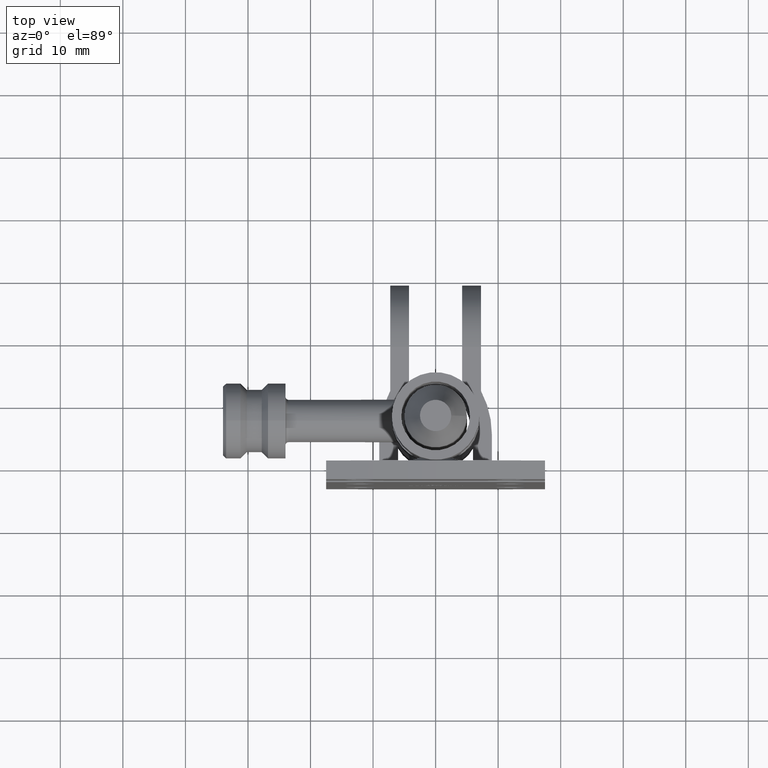
[diagram: clean part render]
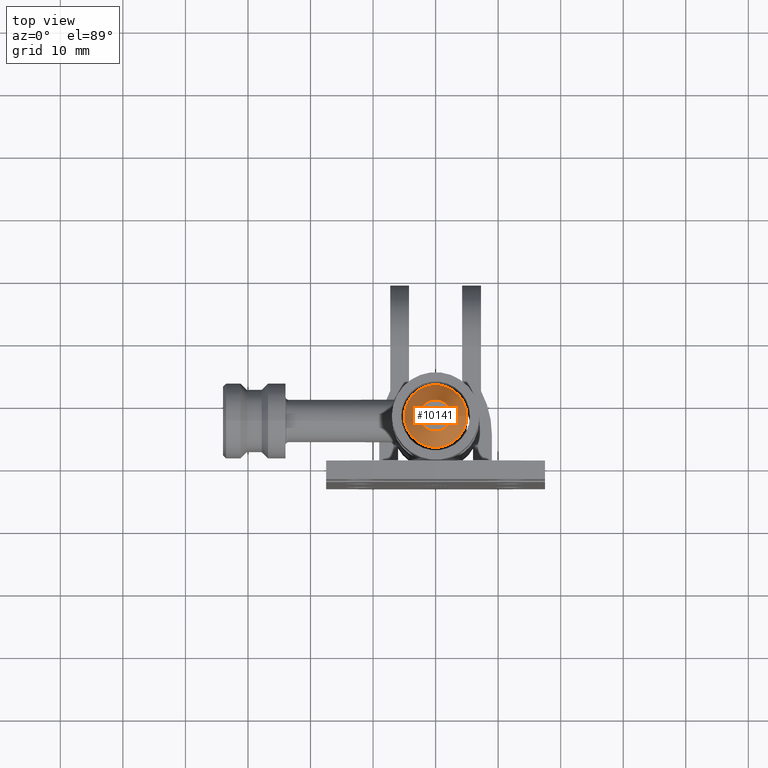
[diagram: same view with one face highlighted and labeled with its STEP entity id]
A machine part, top view. The second image highlights one B-rep face of the part: STEP entity #10141.
In plain terms, the highlighted conical surface has half-angle 26.565 deg.
Its self-contained STEP definition (entity closure, byte-faithful):
#1736 = CARTESIAN_POINT ( 'NONE',  ( 0.000000000000000000, 0.000000000000000000, -50.00000000000000000 ) ) ;
#2481 = DIRECTION ( 'NONE',  ( -0.000000000000000000, -0.000000000000000000, 1.000000000000000000 ) ) ;
#3749 = AXIS2_PLACEMENT_3D ( 'NONE', #14787, #11170, #7905 ) ;
#3823 = FACE_OUTER_BOUND ( 'NONE', #5165, .T. ) ;
#4920 = CARTESIAN_POINT ( 'NONE',  ( 0.000000000000000000, 0.000000000000000000, -45.00000000000001421 ) ) ;
#5129 = CARTESIAN_POINT ( 'NONE',  ( 5.000000000000000000, 0.000000000000000000, -45.00000000000001421 ) ) ;
#5165 = EDGE_LOOP ( 'NONE', ( #13909 ) ) ;
#5466 = CONICAL_SURFACE ( 'NONE', #3749, 5.000000000000000000, 0.4636476090008054274 ) ;
#6351 = CARTESIAN_POINT ( 'NONE',  ( 2.500000000000009326, 0.000000000000000000, -50.00000000000000000 ) ) ;
#6922 = FACE_BOUND ( 'NONE', #8088, .T. ) ;
#7905 = DIRECTION ( 'NONE',  ( 1.000000000000000000, 0.000000000000000000, 0.000000000000000000 ) ) ;
#8088 = EDGE_LOOP ( 'NONE', ( #13528 ) ) ;
#8417 = CIRCLE ( 'NONE', #9814, 5.000000000000000000 ) ;
#9491 = CIRCLE ( 'NONE', #14153, 2.500000000000009326 ) ;
#9814 = AXIS2_PLACEMENT_3D ( 'NONE', #4920, #2481, #10678 ) ;
#10014 = EDGE_CURVE ( 'NONE', #12409, #12409, #8417, .T. ) ;
#10141 = ADVANCED_FACE ( 'NONE', ( #6922, #3823 ), #5466, .T. ) ;
#10678 = DIRECTION ( 'NONE',  ( 1.000000000000000000, 0.000000000000000000, 0.000000000000000000 ) ) ;
#11170 = DIRECTION ( 'NONE',  ( -0.000000000000000000, -0.000000000000000000, 1.000000000000000000 ) ) ;
#12022 = DIRECTION ( 'NONE',  ( 1.000000000000000000, 0.000000000000000000, 0.000000000000000000 ) ) ;
#12137 = DIRECTION ( 'NONE',  ( -0.000000000000000000, -0.000000000000000000, -1.000000000000000000 ) ) ;
#12409 = VERTEX_POINT ( 'NONE', #5129 ) ;
#13528 = ORIENTED_EDGE ( 'NONE', *, *, #13893, .F. ) ;
#13893 = EDGE_CURVE ( 'NONE', #14958, #14958, #9491, .T. ) ;
#13909 = ORIENTED_EDGE ( 'NONE', *, *, #10014, .F. ) ;
#14153 = AXIS2_PLACEMENT_3D ( 'NONE', #1736, #12137, #12022 ) ;
#14787 = CARTESIAN_POINT ( 'NONE',  ( 0.000000000000000000, 0.000000000000000000, -45.00000000000001421 ) ) ;
#14958 = VERTEX_POINT ( 'NONE', #6351 ) ;